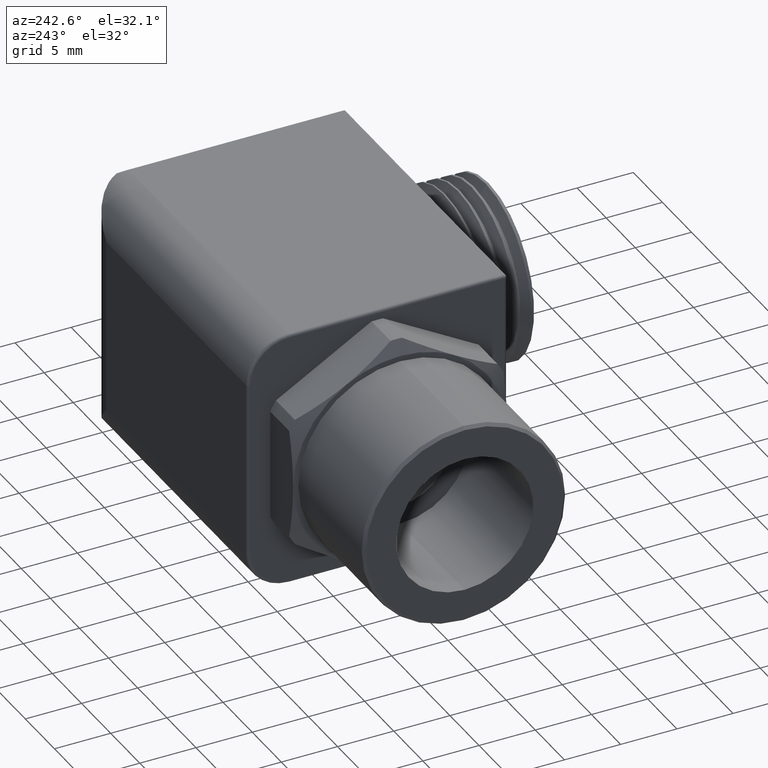
[diagram: clean part render]
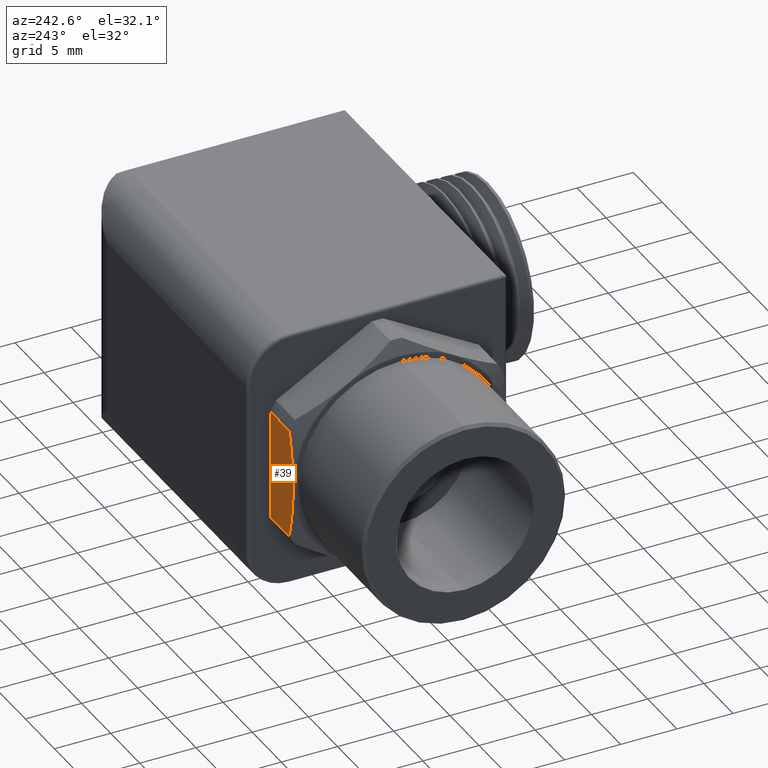
[diagram: same view with one face highlighted and labeled with its STEP entity id]
A machine part, auxiliary view. The second image highlights one B-rep face of the part: STEP entity #39.
In plain terms, the highlighted planar face has unit normal (0, -1, 0).
Its self-contained STEP definition (entity closure, byte-faithful):
#38 = ORIENTED_EDGE ( 'NONE', *, *, #3406, .F. ) ;
#39 = ADVANCED_FACE ( 'NONE', ( #1136 ), #1133, .F. ) ;
#40 = EDGE_LOOP ( 'NONE', ( #38, #3484, #3560, #3486, #3558 ) ) ;
#42 = EDGE_CURVE ( 'NONE', #43, #3567, #1121, .T. ) ;
#43 = VERTEX_POINT ( 'NONE', #1117 ) ;
#238 = EDGE_CURVE ( 'NONE', #239, #263, #1543, .T. ) ;
#239 = VERTEX_POINT ( 'NONE', #1601 ) ;
#263 = VERTEX_POINT ( 'NONE', #1616 ) ;
#1117 = CARTESIAN_POINT ( 'NONE',  ( -0.3100000000000000000, 0.3750000000000005000, 0.1932705762008268800 ) ) ;
#1118 = DIRECTION ( 'NONE',  ( -1.000000000000000000, 0.0000000000000000000, 0.0000000000000000000 ) ) ;
#1119 = VECTOR ( 'NONE', #1118, 39.37007874015748100 ) ;
#1120 = CARTESIAN_POINT ( 'NONE',  ( 0.8951751201848218200, 0.3750000000000005000, 0.1932705762008268800 ) ) ;
#1121 = LINE ( 'NONE', #1120, #1119 ) ;
#1122 = DIRECTION ( 'NONE',  ( 0.0000000000000000000, 0.0000000000000000000, -1.000000000000000000 ) ) ;
#1123 = DIRECTION ( 'NONE',  ( 0.0000000000000000000, -1.000000000000000000, 0.0000000000000000000 ) ) ;
#1132 = CARTESIAN_POINT ( 'NONE',  ( 0.8951751201848218200, 0.3750000000000005000, -0.1932705762008268800 ) ) ;
#1133 = PLANE ( 'NONE',  #1135 ) ;
#1135 = AXIS2_PLACEMENT_3D ( 'NONE', #1132, #1123, #1122 ) ;
#1136 = FACE_OUTER_BOUND ( 'NONE', #40, .T. ) ;
#1541 = DIRECTION ( 'NONE',  ( -1.000000000000000000, 0.0000000000000000000, 0.0000000000000000000 ) ) ;
#1542 = CARTESIAN_POINT ( 'NONE',  ( 0.8951751201848218200, 0.3750000000000004400, -0.1932705762008269400 ) ) ;
#1543 = LINE ( 'NONE', #1542, #1602 ) ;
#1601 = CARTESIAN_POINT ( 'NONE',  ( -0.3100000000000000000, 0.3750000000000005000, -0.1932705762008269400 ) ) ;
#1602 = VECTOR ( 'NONE', #1541, 39.37007874015748100 ) ;
#1616 = CARTESIAN_POINT ( 'NONE',  ( -0.4379367061317362400, 0.3750000000000004400, -0.1932705762008269400 ) ) ;
#3051 = CARTESIAN_POINT ( 'NONE',  ( -0.4649999999999998000, 0.3750000000000005000, 0.0000000000000000000 ) ) ;
#3052 = CARTESIAN_POINT ( 'NONE',  ( -0.4649999999999994100, 0.3750000000000004400, 0.01626356864495441500 ) ) ;
#3053 = CARTESIAN_POINT ( 'NONE',  ( -0.4643865814109904300, 0.3750000000000003900, 0.03256352525866016600 ) ) ;
#3054 = CARTESIAN_POINT ( 'NONE',  ( -0.4619475126490965000, 0.3750000000000004400, 0.06523534802025222900 ) ) ;
#3055 = CARTESIAN_POINT ( 'NONE',  ( -0.4601142818683333100, 0.3750000000000004400, 0.08162996707493425100 ) ) ;
#3056 = CARTESIAN_POINT ( 'NONE',  ( -0.4530415268035998800, 0.3750000000000004400, 0.1301689467713365900 ) ) ;
#3057 = CARTESIAN_POINT ( 'NONE',  ( -0.4462262537443107400, 0.3750000000000005000, 0.1619298174466029500 ) ) ;
#3058 = CARTESIAN_POINT ( 'NONE',  ( -0.4379367061317362400, 0.3750000000000005000, 0.1932705762008268800 ) ) ;
#3061 = B_SPLINE_CURVE_WITH_KNOTS ( 'NONE', 3,
 ( #3058, #3057, #3056, #3055, #3054, #3053, #3052, #3051 ),
 .UNSPECIFIED., .F., .F.,
 ( 4, 2, 2, 4 ),
 ( 0.005128663519013388100, 0.007598506763263438200, 0.008833428385388461500, 0.01006835000751348700 ),
 .UNSPECIFIED. ) ;
#3192 = CARTESIAN_POINT ( 'NONE',  ( -0.4649999999999998000, 0.3750000000000005000, 0.0000000000000000000 ) ) ;
#3326 = DIRECTION ( 'NONE',  ( 0.0000000000000000000, 0.0000000000000000000, -1.000000000000000000 ) ) ;
#3327 = VECTOR ( 'NONE', #3326, 39.37007874015748100 ) ;
#3328 = CARTESIAN_POINT ( 'NONE',  ( -0.4379367061317362400, 0.3750000000000004400, -0.1932705762008269400 ) ) ;
#3329 = CARTESIAN_POINT ( 'NONE',  ( -0.4462862301139206600, 0.3750000000000005000, -0.1617030614137452100 ) ) ;
#3330 = CARTESIAN_POINT ( 'NONE',  ( -0.4531759834070721000, 0.3750000000000005000, -0.1294386138378238500 ) ) ;
#3331 = CARTESIAN_POINT ( 'NONE',  ( -0.4625201272140978500, 0.3750000000000005000, -0.06492290107459332300 ) ) ;
#3332 = CARTESIAN_POINT ( 'NONE',  ( -0.4649999999999994100, 0.3750000000000004400, -0.03253500351976033900 ) ) ;
#3333 = CARTESIAN_POINT ( 'NONE',  ( -0.4649999999999998000, 0.3750000000000005000, 0.0000000000000000000 ) ) ;
#3334 = CARTESIAN_POINT ( 'NONE',  ( -0.3100000000000000000, 0.3750000000000005000, -0.1932705762008268800 ) ) ;
#3335 = LINE ( 'NONE', #3334, #3327 ) ;
#3336 = B_SPLINE_CURVE_WITH_KNOTS ( 'NONE', 3,
 ( #3333, #3332, #3331, #3330, #3329, #3328 ),
 .UNSPECIFIED., .F., .F.,
 ( 4, 2, 4 ),
 ( 0.01006835000751348700, 0.01253879054855247200, 0.01500923108959145900 ),
 .UNSPECIFIED. ) ;
#3357 = CARTESIAN_POINT ( 'NONE',  ( -0.4379367061317362400, 0.3750000000000005000, 0.1932705762008268800 ) ) ;
#3406 = EDGE_CURVE ( 'NONE', #3567, #3506, #3061, .T. ) ;
#3484 = ORIENTED_EDGE ( 'NONE', *, *, #42, .F. ) ;
#3486 = ORIENTED_EDGE ( 'NONE', *, *, #238, .T. ) ;
#3506 = VERTEX_POINT ( 'NONE', #3192 ) ;
#3557 = EDGE_CURVE ( 'NONE', #3506, #263, #3336, .T. ) ;
#3558 = ORIENTED_EDGE ( 'NONE', *, *, #3557, .F. ) ;
#3559 = EDGE_CURVE ( 'NONE', #43, #239, #3335, .T. ) ;
#3560 = ORIENTED_EDGE ( 'NONE', *, *, #3559, .T. ) ;
#3567 = VERTEX_POINT ( 'NONE', #3357 ) ;